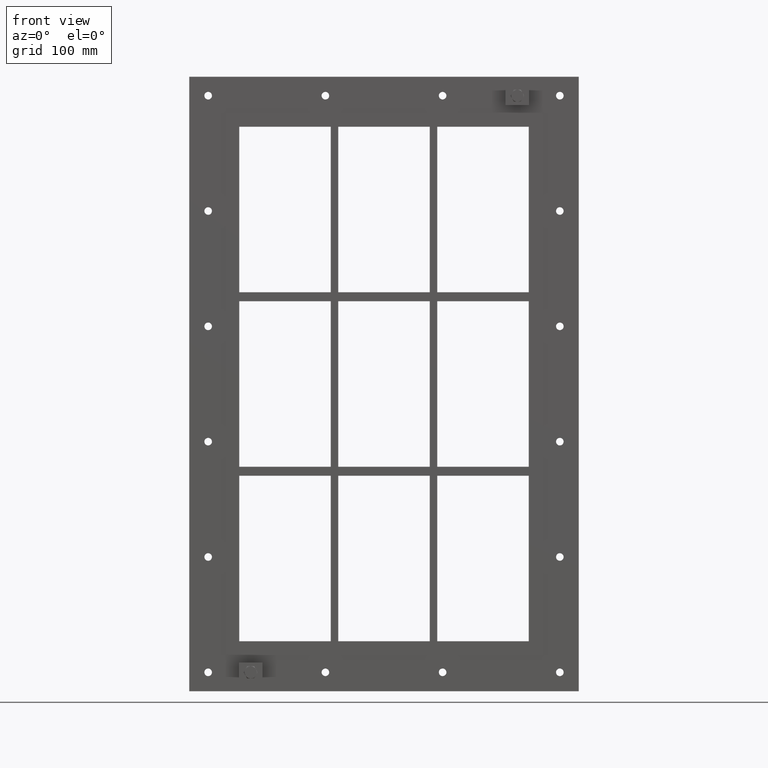
[diagram: clean part render]
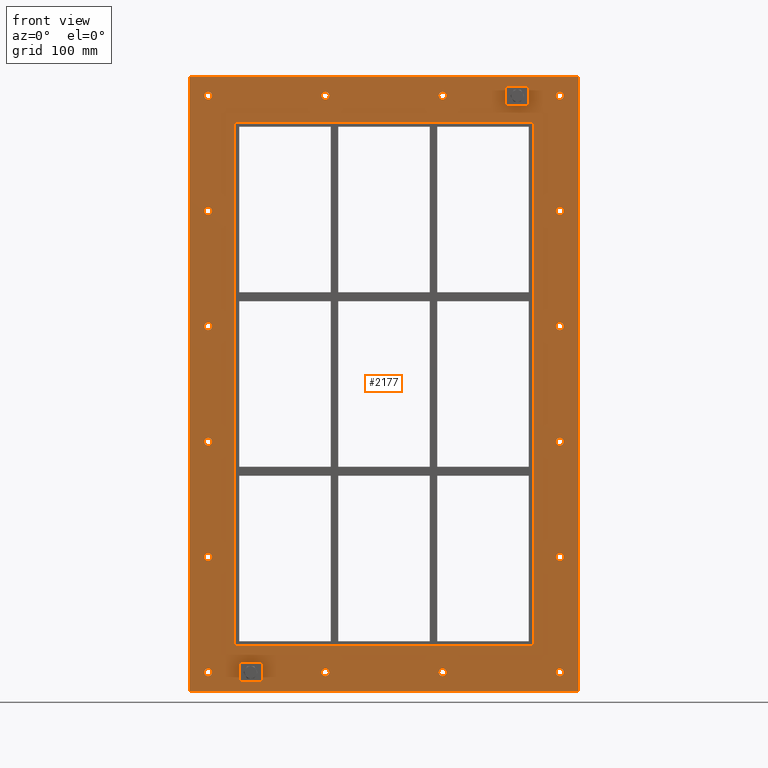
[diagram: same view with one face highlighted and labeled with its STEP entity id]
A machine part, front view. The second image highlights one B-rep face of the part: STEP entity #2177.
In plain terms, the highlighted planar face has unit normal (0, 1, 0).
Its self-contained STEP definition (entity closure, byte-faithful):
#84=CARTESIAN_POINT('',(-226.75000000000017,0.0,-380.00000000000011));
#85=VERTEX_POINT('',#84);
#86=CARTESIAN_POINT('',(-231.75000000000017,0.0,-380.00000000000011));
#87=DIRECTION('',(0.0,1.0,0.0));
#88=DIRECTION('',(1.0,0.0,0.0));
#89=AXIS2_PLACEMENT_3D('',#86,#87,#88);
#90=CIRCLE('',#89,5.0);
#91=EDGE_CURVE('',#85,#85,#90,.T.);
#112=CARTESIAN_POINT('',(236.74999999999983,0.0,-228.00000000000017));
#113=VERTEX_POINT('',#112);
#114=CARTESIAN_POINT('',(231.74999999999983,0.0,-228.00000000000017));
#115=DIRECTION('',(0.0,1.0,0.0));
#116=DIRECTION('',(1.0,0.0,0.0));
#117=AXIS2_PLACEMENT_3D('',#114,#115,#116);
#118=CIRCLE('',#117,5.0);
#119=EDGE_CURVE('',#113,#113,#118,.T.);
#140=CARTESIAN_POINT('',(-226.75000000000017,0.0,-228.00000000000017));
#141=VERTEX_POINT('',#140);
#142=CARTESIAN_POINT('',(-231.75000000000017,0.0,-228.00000000000017));
#143=DIRECTION('',(0.0,1.0,0.0));
#144=DIRECTION('',(1.0,0.0,0.0));
#145=AXIS2_PLACEMENT_3D('',#142,#143,#144);
#146=CIRCLE('',#145,5.0);
#147=EDGE_CURVE('',#141,#141,#146,.T.);
#168=CARTESIAN_POINT('',(236.74999999999983,0.0,-76.000000000000142));
#169=VERTEX_POINT('',#168);
#170=CARTESIAN_POINT('',(231.74999999999983,0.0,-76.000000000000142));
#171=DIRECTION('',(0.0,1.0,0.0));
#172=DIRECTION('',(1.0,0.0,0.0));
#173=AXIS2_PLACEMENT_3D('',#170,#171,#172);
#174=CIRCLE('',#173,5.0);
#175=EDGE_CURVE('',#169,#169,#174,.T.);
#196=CARTESIAN_POINT('',(-226.75000000000017,0.0,-76.000000000000142));
#197=VERTEX_POINT('',#196);
#198=CARTESIAN_POINT('',(-231.75000000000017,0.0,-76.000000000000142));
#199=DIRECTION('',(0.0,1.0,0.0));
#200=DIRECTION('',(1.0,0.0,0.0));
#201=AXIS2_PLACEMENT_3D('',#198,#199,#200);
#202=CIRCLE('',#201,5.0);
#203=EDGE_CURVE('',#197,#197,#202,.T.);
#224=CARTESIAN_POINT('',(236.74999999999983,0.0,75.999999999999815));
#225=VERTEX_POINT('',#224);
#226=CARTESIAN_POINT('',(231.74999999999983,0.0,75.999999999999815));
#227=DIRECTION('',(0.0,1.0,0.0));
#228=DIRECTION('',(1.0,0.0,0.0));
#229=AXIS2_PLACEMENT_3D('',#226,#227,#228);
#230=CIRCLE('',#229,5.0);
#231=EDGE_CURVE('',#225,#225,#230,.T.);
#252=CARTESIAN_POINT('',(-226.75000000000017,0.0,75.999999999999815));
#253=VERTEX_POINT('',#252);
#254=CARTESIAN_POINT('',(-231.75000000000017,0.0,75.999999999999815));
#255=DIRECTION('',(0.0,1.0,0.0));
#256=DIRECTION('',(1.0,0.0,0.0));
#257=AXIS2_PLACEMENT_3D('',#254,#255,#256);
#258=CIRCLE('',#257,5.0);
#259=EDGE_CURVE('',#253,#253,#258,.T.);
#280=CARTESIAN_POINT('',(236.74999999999983,0.0,227.99999999999983));
#281=VERTEX_POINT('',#280);
#282=CARTESIAN_POINT('',(231.74999999999983,0.0,227.99999999999983));
#283=DIRECTION('',(0.0,1.0,0.0));
#284=DIRECTION('',(1.0,0.0,0.0));
#285=AXIS2_PLACEMENT_3D('',#282,#283,#284);
#286=CIRCLE('',#285,5.0);
#287=EDGE_CURVE('',#281,#281,#286,.T.);
#308=CARTESIAN_POINT('',(-226.75000000000017,0.0,227.99999999999983));
#309=VERTEX_POINT('',#308);
#310=CARTESIAN_POINT('',(-231.75000000000017,0.0,227.99999999999983));
#311=DIRECTION('',(0.0,1.0,0.0));
#312=DIRECTION('',(1.0,0.0,0.0));
#313=AXIS2_PLACEMENT_3D('',#310,#311,#312);
#314=CIRCLE('',#313,5.0);
#315=EDGE_CURVE('',#309,#309,#314,.T.);
#336=CARTESIAN_POINT('',(-72.250000000000199,0.0,379.99999999999989));
#337=VERTEX_POINT('',#336);
#338=CARTESIAN_POINT('',(-77.250000000000199,0.0,379.99999999999989));
#339=DIRECTION('',(0.0,1.0,0.0));
#340=DIRECTION('',(1.0,0.0,0.0));
#341=AXIS2_PLACEMENT_3D('',#338,#339,#340);
#342=CIRCLE('',#341,5.0);
#343=EDGE_CURVE('',#337,#337,#342,.T.);
#364=CARTESIAN_POINT('',(-72.250000000000199,0.0,-380.00000000000011));
#365=VERTEX_POINT('',#364);
#366=CARTESIAN_POINT('',(-77.250000000000199,0.0,-380.00000000000011));
#367=DIRECTION('',(0.0,1.0,0.0));
#368=DIRECTION('',(1.0,0.0,0.0));
#369=AXIS2_PLACEMENT_3D('',#366,#367,#368);
#370=CIRCLE('',#369,5.0);
#371=EDGE_CURVE('',#365,#365,#370,.T.);
#392=CARTESIAN_POINT('',(82.249999999999815,0.0,379.99999999999989));
#393=VERTEX_POINT('',#392);
#394=CARTESIAN_POINT('',(77.249999999999815,0.0,379.99999999999989));
#395=DIRECTION('',(0.0,1.0,0.0));
#396=DIRECTION('',(1.0,0.0,0.0));
#397=AXIS2_PLACEMENT_3D('',#394,#395,#396);
#398=CIRCLE('',#397,5.0);
#399=EDGE_CURVE('',#393,#393,#398,.T.);
#420=CARTESIAN_POINT('',(82.249999999999815,0.0,-380.00000000000011));
#421=VERTEX_POINT('',#420);
#422=CARTESIAN_POINT('',(77.249999999999815,0.0,-380.00000000000011));
#423=DIRECTION('',(0.0,1.0,0.0));
#424=DIRECTION('',(1.0,0.0,0.0));
#425=AXIS2_PLACEMENT_3D('',#422,#423,#424);
#426=CIRCLE('',#425,5.0);
#427=EDGE_CURVE('',#421,#421,#426,.T.);
#448=CARTESIAN_POINT('',(236.74999999999983,0.0,-380.00000000000011));
#449=VERTEX_POINT('',#448);
#450=CARTESIAN_POINT('',(231.74999999999983,0.0,-380.00000000000011));
#451=DIRECTION('',(0.0,1.0,0.0));
#452=DIRECTION('',(1.0,0.0,0.0));
#453=AXIS2_PLACEMENT_3D('',#450,#451,#452);
#454=CIRCLE('',#453,5.0);
#455=EDGE_CURVE('',#449,#449,#454,.T.);
#476=CARTESIAN_POINT('',(-226.75000000000017,0.0,379.99999999999989));
#477=VERTEX_POINT('',#476);
#478=CARTESIAN_POINT('',(-231.75000000000017,0.0,379.99999999999989));
#479=DIRECTION('',(0.0,1.0,0.0));
#480=DIRECTION('',(1.0,0.0,0.0));
#481=AXIS2_PLACEMENT_3D('',#478,#479,#480);
#482=CIRCLE('',#481,5.0);
#483=EDGE_CURVE('',#477,#477,#482,.T.);
#504=CARTESIAN_POINT('',(236.74999999999983,0.0,379.99999999999989));
#505=VERTEX_POINT('',#504);
#506=CARTESIAN_POINT('',(231.74999999999983,0.0,379.99999999999989));
#507=DIRECTION('',(0.0,1.0,0.0));
#508=DIRECTION('',(1.0,0.0,0.0));
#509=AXIS2_PLACEMENT_3D('',#506,#507,#508);
#510=CIRCLE('',#509,5.0);
#511=EDGE_CURVE('',#505,#505,#510,.T.);
#2020=CARTESIAN_POINT('',(0.0,0.0,0.0));
#2021=DIRECTION('',(0.0,1.0,0.0));
#2022=DIRECTION('',(0.0,0.0,1.0));
#2023=AXIS2_PLACEMENT_3D('',#2020,#2021,#2022);
#2024=PLANE('',#2023);
#2025=CARTESIAN_POINT('',(-256.75000000000006,0.0,405.00000000000006));
#2026=VERTEX_POINT('',#2025);
#2027=CARTESIAN_POINT('',(256.75000000000006,0.0,405.00000000000006));
#2028=VERTEX_POINT('',#2027);
#2029=CARTESIAN_POINT('',(-256.75000000000006,0.0,405.00000000000006));
#2030=DIRECTION('',(1.0,0.0,0.0));
#2031=VECTOR('',#2030,513.50000000000011);
#2032=LINE('',#2029,#2031);
#2033=EDGE_CURVE('',#2026,#2028,#2032,.T.);
#2034=ORIENTED_EDGE('',*,*,#2033,.F.);
#2035=CARTESIAN_POINT('',(-256.75000000000006,0.0,-405.00000000000006));
#2036=VERTEX_POINT('',#2035);
#2037=CARTESIAN_POINT('',(-256.75000000000006,0.0,-405.00000000000006));
#2038=DIRECTION('',(0.0,0.0,1.0));
#2039=VECTOR('',#2038,810.00000000000011);
#2040=LINE('',#2037,#2039);
#2041=EDGE_CURVE('',#2036,#2026,#2040,.T.);
#2042=ORIENTED_EDGE('',*,*,#2041,.F.);
#2043=CARTESIAN_POINT('',(256.75000000000006,0.0,-405.00000000000006));
#2044=VERTEX_POINT('',#2043);
#2045=CARTESIAN_POINT('',(256.75000000000006,0.0,-405.00000000000006));
#2046=DIRECTION('',(-1.0,0.0,0.0));
#2047=VECTOR('',#2046,513.50000000000011);
#2048=LINE('',#2045,#2047);
#2049=EDGE_CURVE('',#2044,#2036,#2048,.T.);
#2050=ORIENTED_EDGE('',*,*,#2049,.F.);
#2051=CARTESIAN_POINT('',(256.75000000000006,0.0,405.00000000000006));
#2052=DIRECTION('',(0.0,0.0,-1.0));
#2053=VECTOR('',#2052,810.00000000000011);
#2054=LINE('',#2051,#2053);
#2055=EDGE_CURVE('',#2028,#2044,#2054,.T.);
#2056=ORIENTED_EDGE('',*,*,#2055,.F.);
#2057=EDGE_LOOP('',(#2034,#2042,#2050,#2056));
#2058=FACE_OUTER_BOUND('',#2057,.T.);
#2059=ORIENTED_EDGE('',*,*,#91,.T.);
#2060=EDGE_LOOP('',(#2059));
#2061=FACE_BOUND('',#2060,.T.);
#2062=ORIENTED_EDGE('',*,*,#119,.T.);
#2063=EDGE_LOOP('',(#2062));
#2064=FACE_BOUND('',#2063,.T.);
#2065=ORIENTED_EDGE('',*,*,#147,.T.);
#2066=EDGE_LOOP('',(#2065));
#2067=FACE_BOUND('',#2066,.T.);
#2068=ORIENTED_EDGE('',*,*,#175,.T.);
#2069=EDGE_LOOP('',(#2068));
#2070=FACE_BOUND('',#2069,.T.);
#2071=ORIENTED_EDGE('',*,*,#203,.T.);
#2072=EDGE_LOOP('',(#2071));
#2073=FACE_BOUND('',#2072,.T.);
#2074=ORIENTED_EDGE('',*,*,#231,.T.);
#2075=EDGE_LOOP('',(#2074));
#2076=FACE_BOUND('',#2075,.T.);
#2077=ORIENTED_EDGE('',*,*,#259,.T.);
#2078=EDGE_LOOP('',(#2077));
#2079=FACE_BOUND('',#2078,.T.);
#2080=ORIENTED_EDGE('',*,*,#287,.T.);
#2081=EDGE_LOOP('',(#2080));
#2082=FACE_BOUND('',#2081,.T.);
#2083=ORIENTED_EDGE('',*,*,#315,.T.);
#2084=EDGE_LOOP('',(#2083));
#2085=FACE_BOUND('',#2084,.T.);
#2086=ORIENTED_EDGE('',*,*,#343,.T.);
#2087=EDGE_LOOP('',(#2086));
#2088=FACE_BOUND('',#2087,.T.);
#2089=ORIENTED_EDGE('',*,*,#371,.T.);
#2090=EDGE_LOOP('',(#2089));
#2091=FACE_BOUND('',#2090,.T.);
#2092=ORIENTED_EDGE('',*,*,#399,.T.);
#2093=EDGE_LOOP('',(#2092));
#2094=FACE_BOUND('',#2093,.T.);
#2095=ORIENTED_EDGE('',*,*,#427,.T.);
#2096=EDGE_LOOP('',(#2095));
#2097=FACE_BOUND('',#2096,.T.);
#2098=ORIENTED_EDGE('',*,*,#455,.T.);
#2099=EDGE_LOOP('',(#2098));
#2100=FACE_BOUND('',#2099,.T.);
#2101=ORIENTED_EDGE('',*,*,#483,.T.);
#2102=EDGE_LOOP('',(#2101));
#2103=FACE_BOUND('',#2102,.T.);
#2104=ORIENTED_EDGE('',*,*,#511,.T.);
#2105=EDGE_LOOP('',(#2104));
#2106=FACE_BOUND('',#2105,.T.);
#2107=CARTESIAN_POINT('',(-194.75,0.0,345.00000000000006));
#2108=VERTEX_POINT('',#2107);
#2109=CARTESIAN_POINT('',(-196.75000000000006,0.0,343.00000000000006));
#2110=VERTEX_POINT('',#2109);
#2111=CARTESIAN_POINT('',(-194.75,0.0,343.00000000000006));
#2112=DIRECTION('',(0.0,-1.0,0.0));
#2113=DIRECTION('',(-0.707106781186548,0.0,0.707106781186548));
#2114=AXIS2_PLACEMENT_3D('',#2111,#2112,#2113);
#2115=CIRCLE('',#2114,2.0);
#2116=EDGE_CURVE('',#2108,#2110,#2115,.T.);
#2117=ORIENTED_EDGE('',*,*,#2116,.F.);
#2118=CARTESIAN_POINT('',(194.75,0.0,345.00000000000006));
#2119=VERTEX_POINT('',#2118);
#2120=CARTESIAN_POINT('',(194.75000000000003,0.0,345.00000000000006));
#2121=DIRECTION('',(-1.0,0.0,0.0));
#2122=VECTOR('',#2121,389.50000000000006);
#2123=LINE('',#2120,#2122);
#2124=EDGE_CURVE('',#2119,#2108,#2123,.T.);
#2125=ORIENTED_EDGE('',*,*,#2124,.F.);
#2126=CARTESIAN_POINT('',(196.75000000000006,0.0,343.00000000000006));
#2127=VERTEX_POINT('',#2126);
#2128=CARTESIAN_POINT('',(194.75,0.0,343.00000000000006));
#2129=DIRECTION('',(0.0,-1.0,0.0));
#2130=DIRECTION('',(0.707106781186548,0.0,0.707106781186548));
#2131=AXIS2_PLACEMENT_3D('',#2128,#2129,#2130);
#2132=CIRCLE('',#2131,2.0);
#2133=EDGE_CURVE('',#2127,#2119,#2132,.T.);
#2134=ORIENTED_EDGE('',*,*,#2133,.F.);
#2135=CARTESIAN_POINT('',(196.75000000000006,0.0,-343.00000000000006));
#2136=VERTEX_POINT('',#2135);
#2137=CARTESIAN_POINT('',(196.75000000000006,0.0,-343.00000000000011));
#2138=DIRECTION('',(0.0,0.0,1.0));
#2139=VECTOR('',#2138,686.00000000000011);
#2140=LINE('',#2137,#2139);
#2141=EDGE_CURVE('',#2136,#2127,#2140,.T.);
#2142=ORIENTED_EDGE('',*,*,#2141,.F.);
#2143=CARTESIAN_POINT('',(194.75,0.0,-345.00000000000006));
#2144=VERTEX_POINT('',#2143);
#2145=CARTESIAN_POINT('',(194.75,0.0,-343.00000000000006));
#2146=DIRECTION('',(0.0,-1.0,0.0));
#2147=DIRECTION('',(0.707106781186548,0.0,-0.707106781186548));
#2148=AXIS2_PLACEMENT_3D('',#2145,#2146,#2147);
#2149=CIRCLE('',#2148,2.0);
#2150=EDGE_CURVE('',#2144,#2136,#2149,.T.);
#2151=ORIENTED_EDGE('',*,*,#2150,.F.);
#2152=CARTESIAN_POINT('',(-194.75,0.0,-345.00000000000006));
#2153=VERTEX_POINT('',#2152);
#2154=CARTESIAN_POINT('',(-194.75000000000003,0.0,-345.00000000000006));
#2155=DIRECTION('',(1.0,0.0,0.0));
#2156=VECTOR('',#2155,389.50000000000006);
#2157=LINE('',#2154,#2156);
#2158=EDGE_CURVE('',#2153,#2144,#2157,.T.);
#2159=ORIENTED_EDGE('',*,*,#2158,.F.);
#2160=CARTESIAN_POINT('',(-196.75000000000006,0.0,-343.00000000000006));
#2161=VERTEX_POINT('',#2160);
#2162=CARTESIAN_POINT('',(-194.75,0.0,-343.00000000000006));
#2163=DIRECTION('',(0.0,-1.0,0.0));
#2164=DIRECTION('',(-0.707106781186548,0.0,-0.707106781186548));
#2165=AXIS2_PLACEMENT_3D('',#2162,#2163,#2164);
#2166=CIRCLE('',#2165,2.0);
#2167=EDGE_CURVE('',#2161,#2153,#2166,.T.);
#2168=ORIENTED_EDGE('',*,*,#2167,.F.);
#2169=CARTESIAN_POINT('',(-196.75000000000006,0.0,343.00000000000011));
#2170=DIRECTION('',(0.0,0.0,-1.0));
#2171=VECTOR('',#2170,686.00000000000011);
#2172=LINE('',#2169,#2171);
#2173=EDGE_CURVE('',#2110,#2161,#2172,.T.);
#2174=ORIENTED_EDGE('',*,*,#2173,.F.);
#2175=EDGE_LOOP('',(#2117,#2125,#2134,#2142,#2151,#2159,#2168,#2174));
#2176=FACE_BOUND('',#2175,.T.);
#2177=ADVANCED_FACE('',(#2058,#2061,#2064,#2067,#2070,#2073,#2076,#2079,#2082,#2085,#2088,#2091,#2094,#2097,#2100,#2103,#2106,#2176),#2024,.F.);